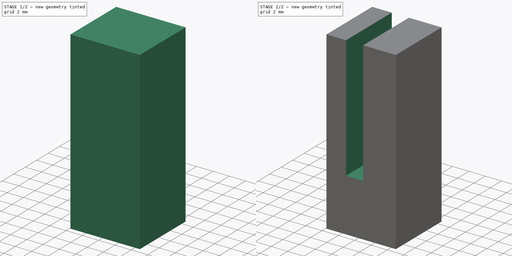
[diagram: build sequence overview — one tinted view per stage of 2, left to right]
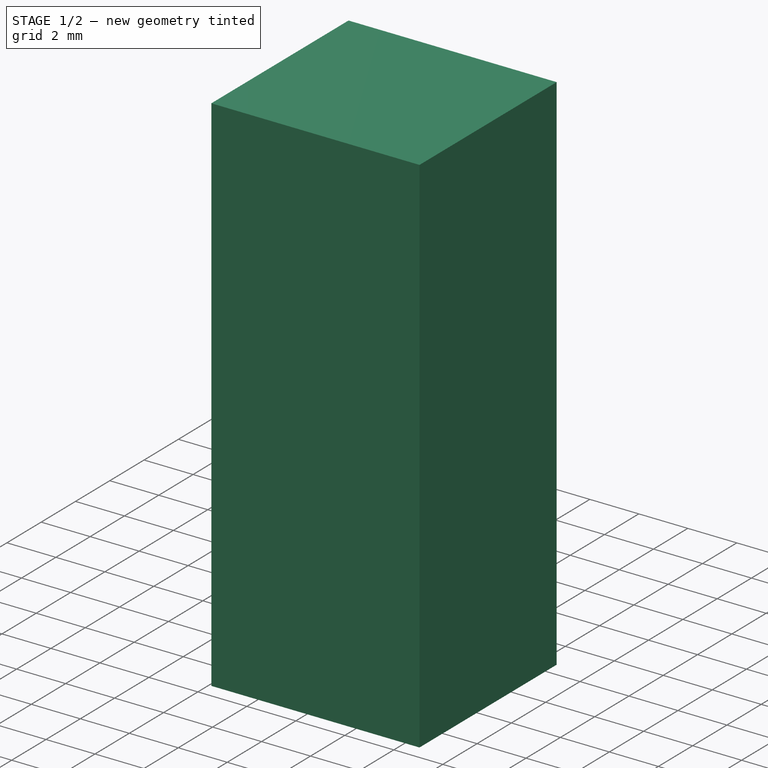
[diagram: stage 1 of 2 — iso view after this stage's code; geometry added in this stage tinted green]
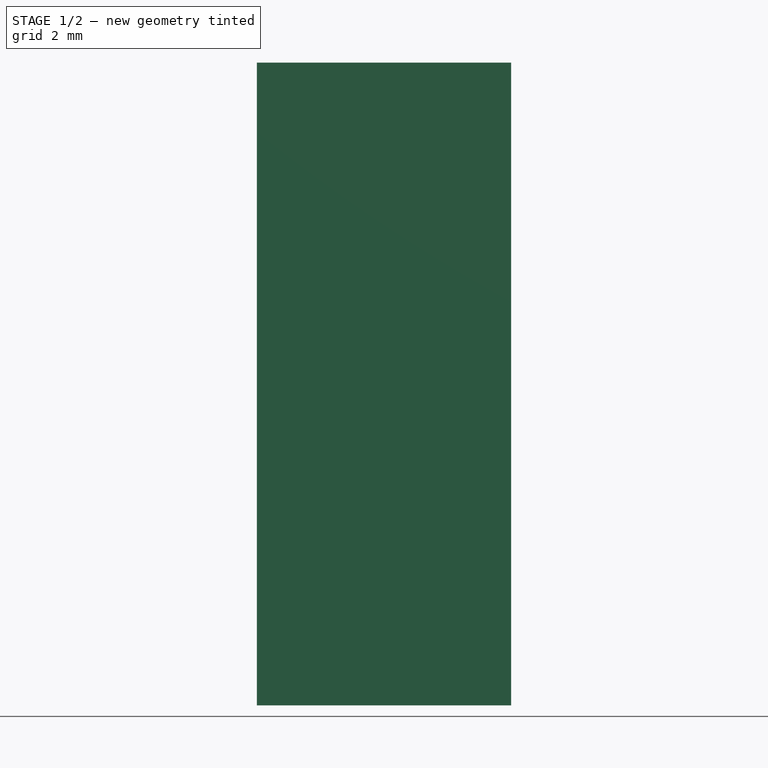
[diagram: stage 1 of 2 — front view after this stage's code; geometry added in this stage tinted green]
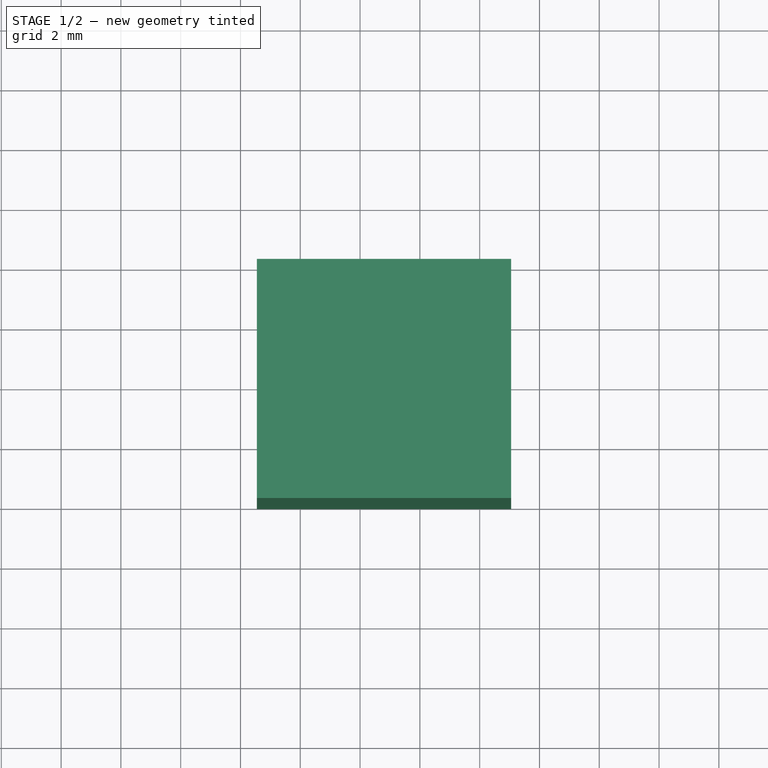
[diagram: stage 1 of 2 — top view after this stage's code; geometry added in this stage tinted green]
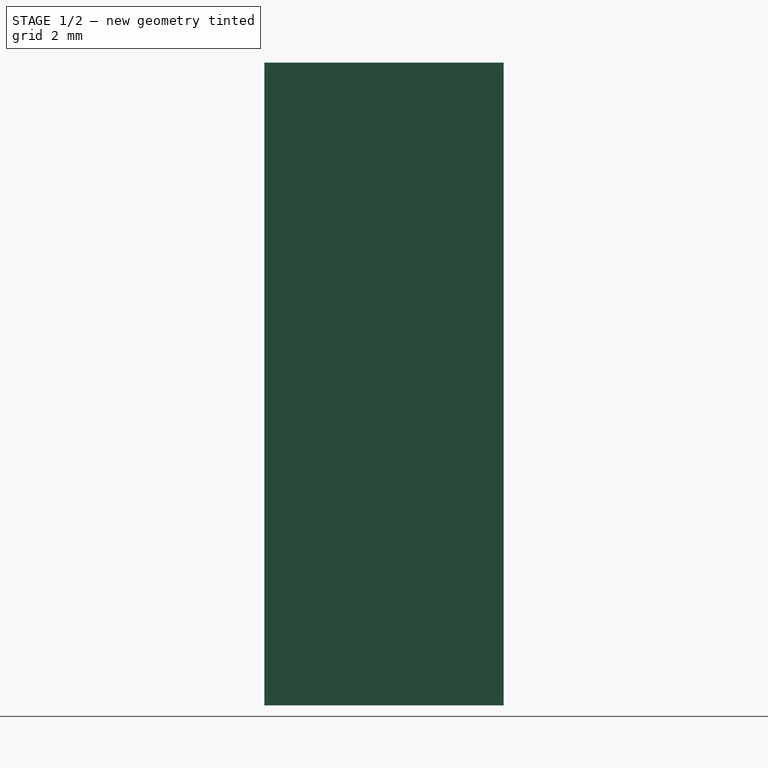
[diagram: stage 1 of 2 — right view after this stage's code; geometry added in this stage tinted green]
FCSTD DOCUMENT  (FreeCAD 0.16R6706 (Git))
Label: ChargerSockel
License: All rights reserved
LicenseURL: http://en.wikipedia.org/wiki/All_rights_reserved
objects: Sketcher::SketchObject×2, PartDesign::Pad×1, PartDesign::Pocket×1
note: 6 computed .brp shape members not serialized (recipe doc carries the construction recipe); baked Part::Feature solids carry a one-line shape summary decoded from their .brp

FEATURE [Sketcher::SketchObject] Sketch  label="Basis"
  sketch-geometry (4):
    g0: LineSegment StartX=-3.45 StartY=4 StartZ=0 EndX=5.05 EndY=4 EndZ=0
    g1: LineSegment StartX=5.05 StartY=4 StartZ=0 EndX=5.05 EndY=-4 EndZ=0
    g2: LineSegment StartX=5.05 StartY=-4 StartZ=0 EndX=-3.45 EndY=-4 EndZ=0
    g3: LineSegment StartX=-3.45 StartY=-4 StartZ=0 EndX=-3.45 EndY=4 EndZ=0
  constraints (12):
    c: Coincident(g0,g1)
    c: Coincident(g1,g2)
    c: Coincident(g2,g3)
    c: Coincident(g3,g0)
    c: Horizontal(g0)
    c: Horizontal(g2)
    c: Vertical(g1)
    c: Vertical(g3)
    c: Symmetric(g0,g2,g-1)
    c: DistanceY(g3,g3) = 8
    c: DistanceX(g0,g0) = 8.5
    c: DistanceX(g-1,g0) = 5.05
FEATURE [PartDesign::Pad] Pad
  Length = 21.5
  Length2 = 100
  Sketch = -> Sketch
  Type = 0
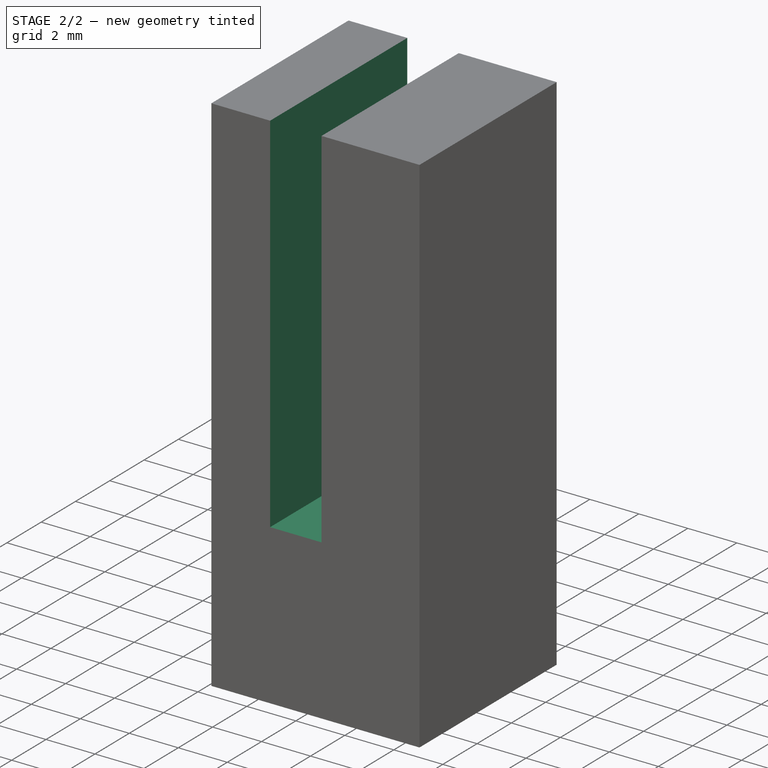
[diagram: stage 2 of 2 — iso view after this stage's code; geometry added in this stage tinted green]
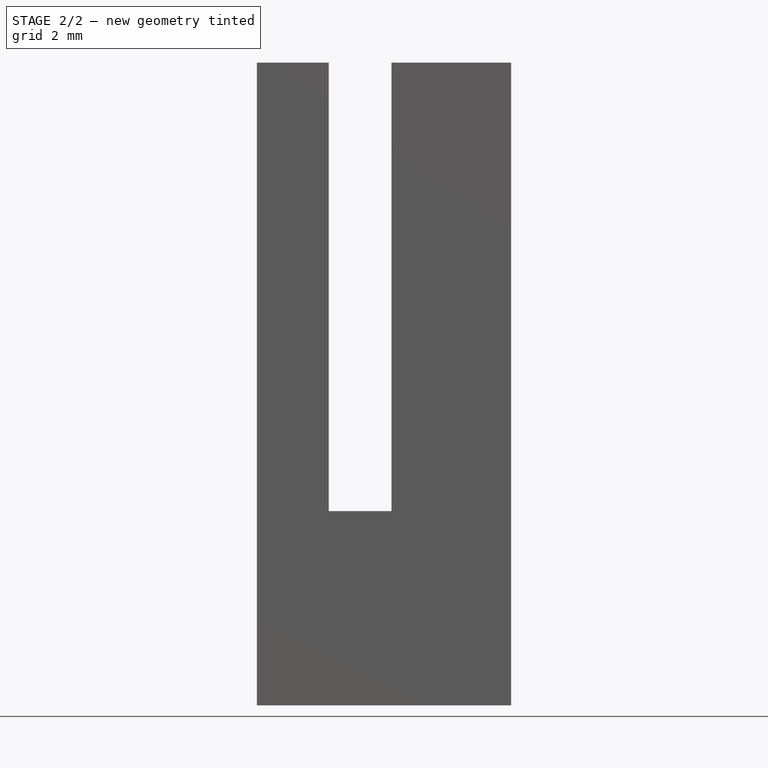
[diagram: stage 2 of 2 — front view after this stage's code; geometry added in this stage tinted green]
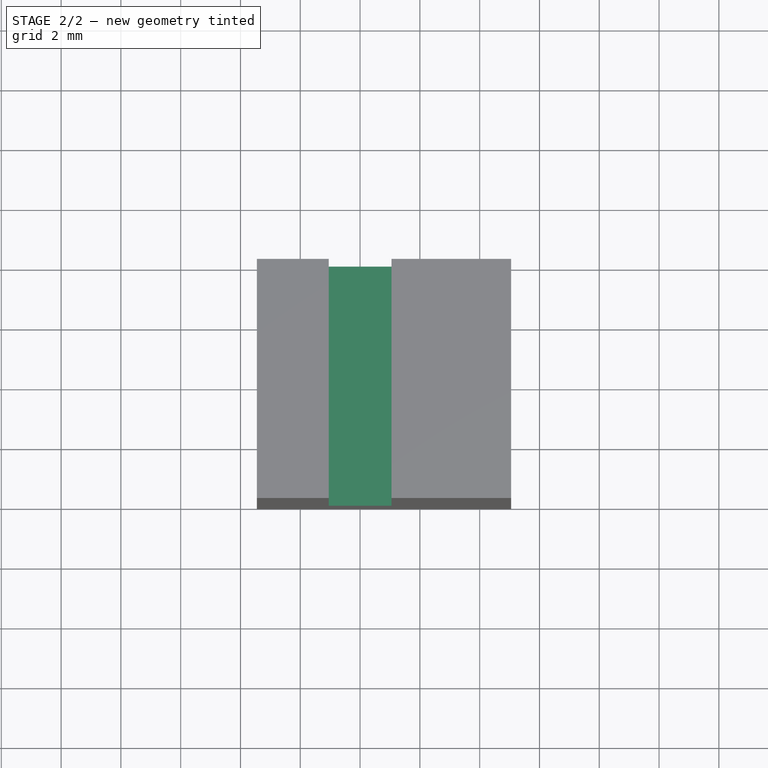
[diagram: stage 2 of 2 — top view after this stage's code; geometry added in this stage tinted green]
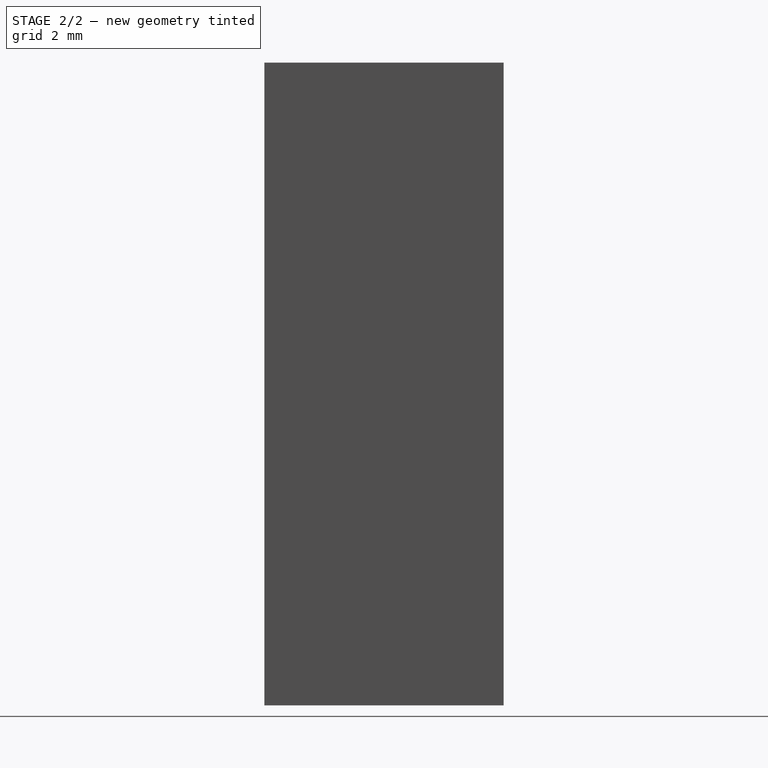
[diagram: stage 2 of 2 — right view after this stage's code; geometry added in this stage tinted green]
FEATURE [Sketcher::SketchObject] Sketch001
  Placement = pos=(0,0,21.5) rot=(0,0,1;0rad)
  Support = -> Pad [Face6]
  sketch-geometry (4):
    g0: LineSegment StartX=-1.05 StartY=4 StartZ=0 EndX=1.05 EndY=4 EndZ=0
    g1: LineSegment StartX=1.05 StartY=4 StartZ=0 EndX=1.05 EndY=-4 EndZ=0
    g2: LineSegment StartX=1.05 StartY=-4 StartZ=0 EndX=-1.05 EndY=-4 EndZ=0
    g3: LineSegment StartX=-1.05 StartY=-4 StartZ=0 EndX=-1.05 EndY=4 EndZ=0
  constraints (12):
    c: Coincident(g0,g1)
    c: Coincident(g1,g2)
    c: Coincident(g2,g3)
    c: Coincident(g3,g0)
    c: Horizontal(g0)
    c: Horizontal(g2)
    c: Vertical(g1)
    c: Vertical(g3)
    c: Symmetric(g0,g0,g-2)
    c: Symmetric(g0,g2,g-1)
    c: DistanceX(g2,g2) = 2.1
    c: DistanceY(g1,g1) = 8
FEATURE [PartDesign::Pocket] Pocket
  Length = 15
  Sketch = -> Sketch001
  Type = 0
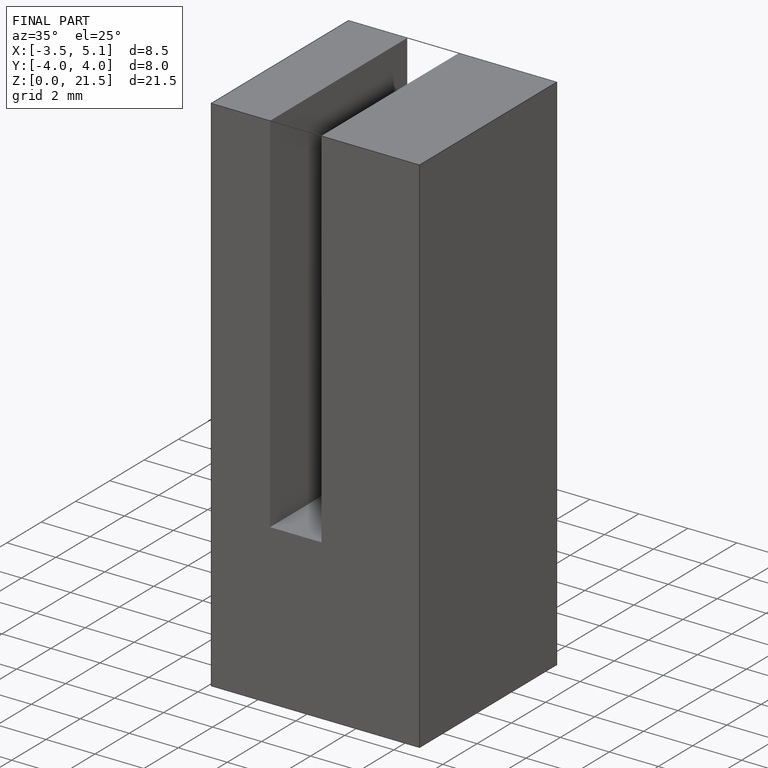
[diagram: finished part — iso view with bounding-box wireframe]
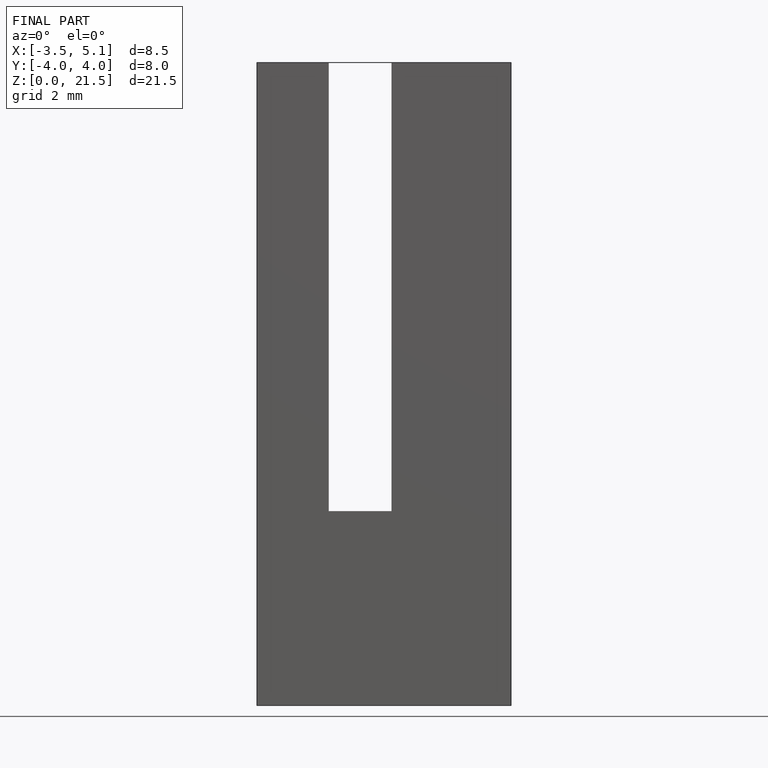
[diagram: finished part — front view with bounding-box wireframe]
